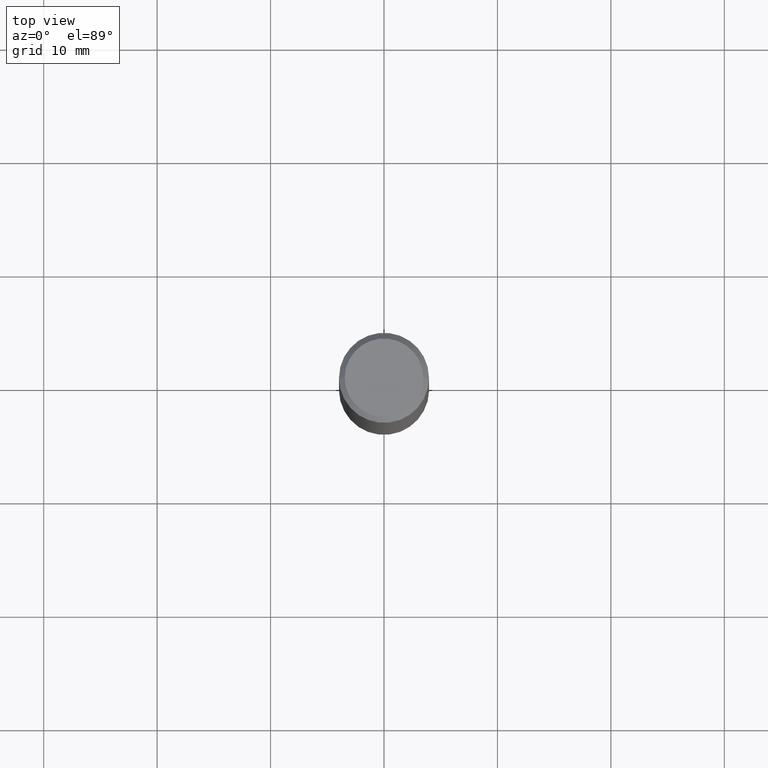
[diagram: clean part render]
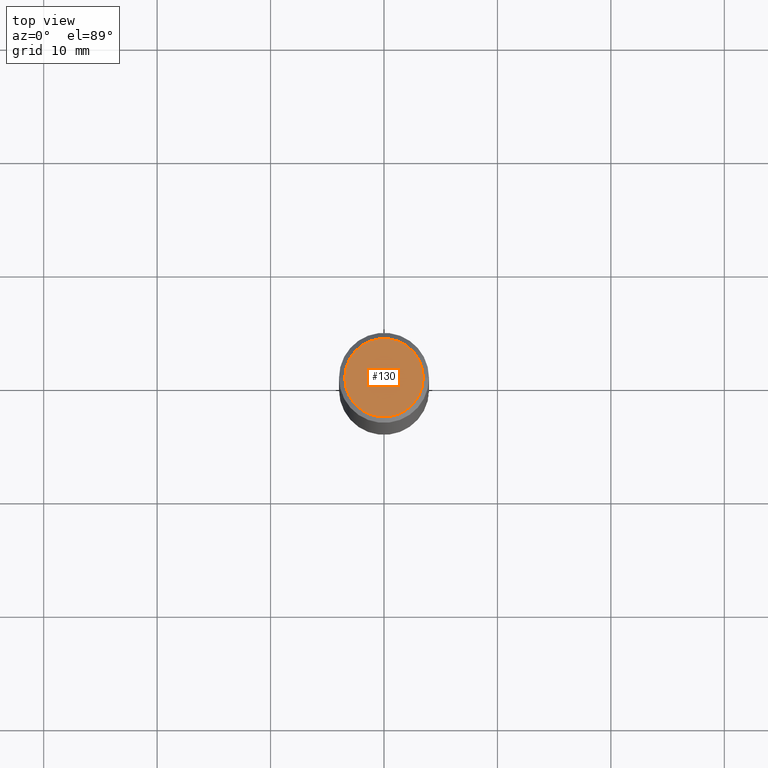
[diagram: same view with one face highlighted and labeled with its STEP entity id]
A machine part, top view. The second image highlights one B-rep face of the part: STEP entity #130.
In plain terms, the highlighted planar face has unit normal (0, -0, -1).
Its self-contained STEP definition (entity closure, byte-faithful):
#35 = DIRECTION ( 'NONE',  ( 2.438088387897960049E-29, -3.491481338843145188E-15, -1.000000000000000000 ) ) ;
#36 = AXIS2_PLACEMENT_3D ( 'NONE', #304, #35, #218 ) ;
#39 = CARTESIAN_POINT ( 'NONE',  ( 0.1362500000000000377, -1.038262645562518322E-15, 6.957025900226697878E-30 ) ) ;
#54 = PLANE ( 'NONE',  #36 ) ;
#64 = DIRECTION ( 'NONE',  ( -2.445468806185136597E-29, 3.491481338843145583E-15, 1.000000000000000000 ) ) ;
#95 = CIRCLE ( 'NONE', #337, 0.1362500000000000377 ) ;
#130 = ADVANCED_FACE ( 'NONE', ( #212 ), #54, .F. ) ;
#136 = EDGE_CURVE ( 'NONE', #290, #343, #241, .T. ) ;
#138 = EDGE_LOOP ( 'NONE', ( #276, #190 ) ) ;
#168 = DIRECTION ( 'NONE',  ( 1.000000000000000000, -6.982962677686266711E-15, 4.876176775795936353E-29 ) ) ;
#187 = CARTESIAN_POINT ( 'NONE',  ( 0.000000000000000000, 0.000000000000000000, 0.000000000000000000 ) ) ;
#188 = DIRECTION ( 'NONE',  ( 1.000000000000000000, -6.982962677686266711E-15, 4.876176775795936353E-29 ) ) ;
#190 = ORIENTED_EDGE ( 'NONE', *, *, #136, .T. ) ;
#212 = FACE_OUTER_BOUND ( 'NONE', #138, .T. ) ;
#218 = DIRECTION ( 'NONE',  ( -1.000000000000000000, 6.982962677686265922E-15, -4.876176775795935793E-29 ) ) ;
#241 = CIRCLE ( 'NONE', #408, 0.1362500000000000377 ) ;
#256 = DIRECTION ( 'NONE',  ( -2.445468806185136597E-29, 3.491481338843145583E-15, 1.000000000000000000 ) ) ;
#276 = ORIENTED_EDGE ( 'NONE', *, *, #370, .T. ) ;
#290 = VERTEX_POINT ( 'NONE', #39 ) ;
#304 = CARTESIAN_POINT ( 'NONE',  ( 9.514286648347541549E-16, 0.1362500000000000377, -4.757143324173787538E-16 ) ) ;
#337 = AXIS2_PLACEMENT_3D ( 'NONE', #345, #64, #168 ) ;
#343 = VERTEX_POINT ( 'NONE', #379 ) ;
#345 = CARTESIAN_POINT ( 'NONE',  ( 0.000000000000000000, 0.000000000000000000, 0.000000000000000000 ) ) ;
#370 = EDGE_CURVE ( 'NONE', #343, #290, #95, .T. ) ;
#379 = CARTESIAN_POINT ( 'NONE',  ( -0.1362500000000000377, 9.863434782231852123E-16, -6.775751096333141285E-30 ) ) ;
#408 = AXIS2_PLACEMENT_3D ( 'NONE', #187, #256, #188 ) ;